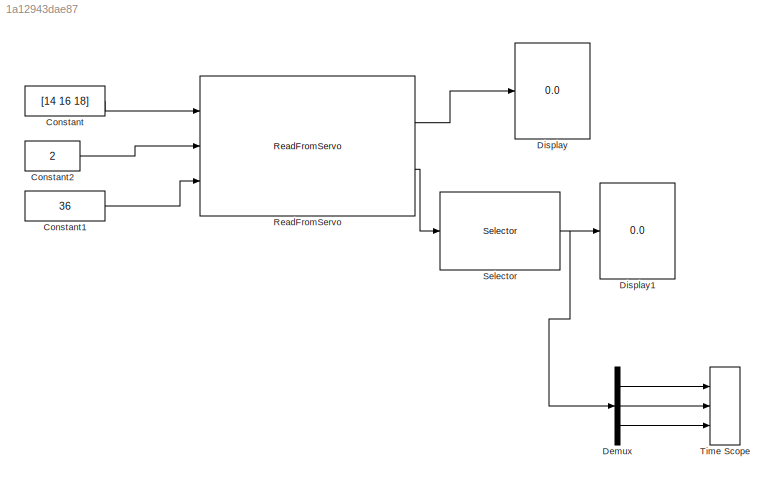
MODEL slx_1a12943dae87
KIND model
BLOCK [Constant] Constant
  OutDataTypeStr = uint8
  SampleTime = -1
  Value = [14 16 18]
BLOCK [Constant] Constant1
  OutDataTypeStr = uint8
  SampleTime = -1
  Value = 36
BLOCK [Constant] Constant2
  OutDataTypeStr = uint8
  SampleTime = -1
  Value = 2
BLOCK [Demux] Demux
  DisplayOption = bar
  Outputs = 3
  Ports = [1, 3]
BLOCK [Display] Display
  Decimation = 1
  Ports = [1]
BLOCK [Display] Display1
  Decimation = 1
  Ports = [1]
BLOCK [Reference] ReadFromServo  REF=BeagleBoneBlackCom/ReadFromServo
  Ports = [3, 2]
  SourceBlock = BeagleBoneBlackCom/ReadFromServo
  SourceType = SubSystem
BLOCK [Selector] Selector
  IndexMode = Zero-based
  IndexOptions = Starting index (dialog)
  Indices = 0
  InputPortWidth = 18
  OutputSizes = 3
  Ports = [1, 1]
BLOCK [TimeScope] Time Scope
  DefaultConfigurationName = spbscopes.TimeScopeBlockCfg
  NumInputPorts = 3
  Ports = [3]
  ScopeSpecificationString = spbscopes.TimeScopeBlockCfg('CurrentConfiguration', extmgr.ConfigurationSet(extmgr.Configuration('Core','General UI',true),extmgr.Configuration('Core','Source UI',true),extmgr.Configuration('Sources','WiredSimulink',true),extmgr.Configuration('Visuals','Time Domain',true,'DisplayLayoutDimensions',[3 1],'DisplayPropertyDefaults',struct('YLabelReal','Amplitude','LegendVisibility','off','XGrid',true,...<+2695ch>
  UserDataPersistent = on
LINE Constant1:1 -> ReadFromServo:3
LINE Constant2:1 -> ReadFromServo:2
LINE Constant:1 -> ReadFromServo:1
LINE Demux:1 -> Time Scope:1
LINE Demux:2 -> Time Scope:2
LINE Demux:3 -> Time Scope:3
LINE ReadFromServo:1 -> Display:1
LINE ReadFromServo:2 -> Selector:1
NET Selector:1 -> Demux:1, Display1:1
note: NET lines group one-source signal fan-out (src -> all destinations, sorted); 1:1 wires keep LINE
